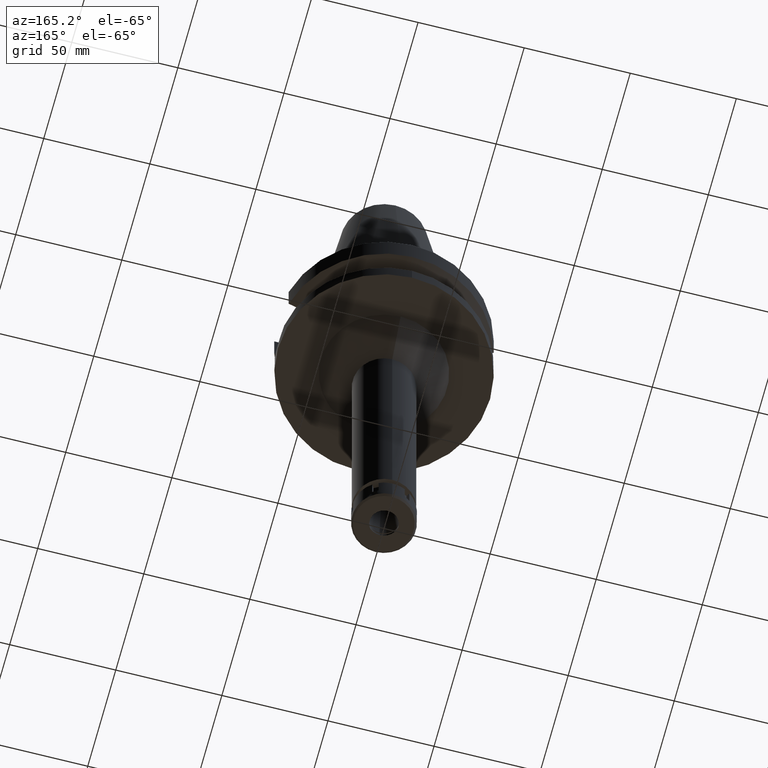
[diagram: clean part render]
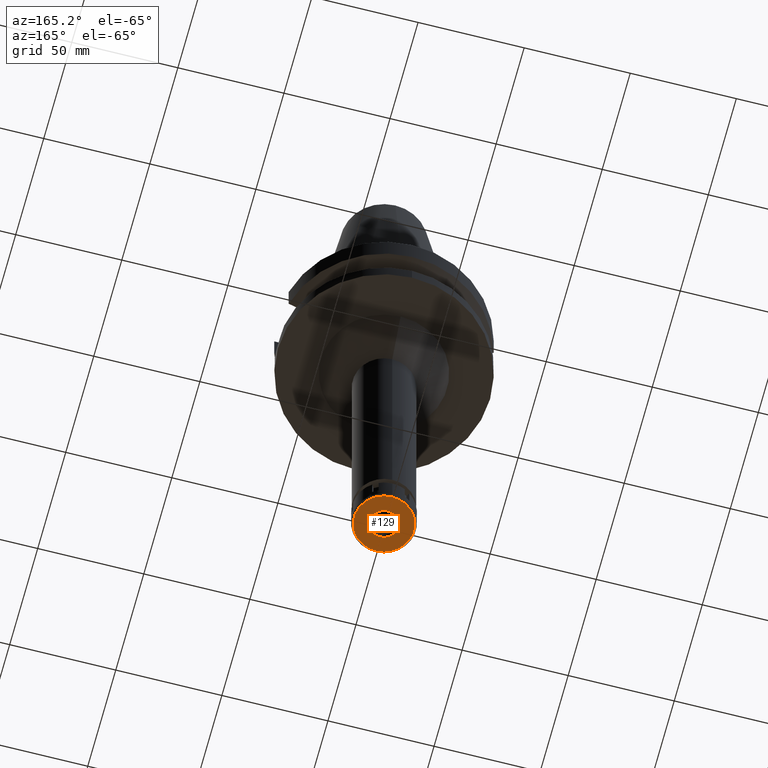
[diagram: same view with one face highlighted and labeled with its STEP entity id]
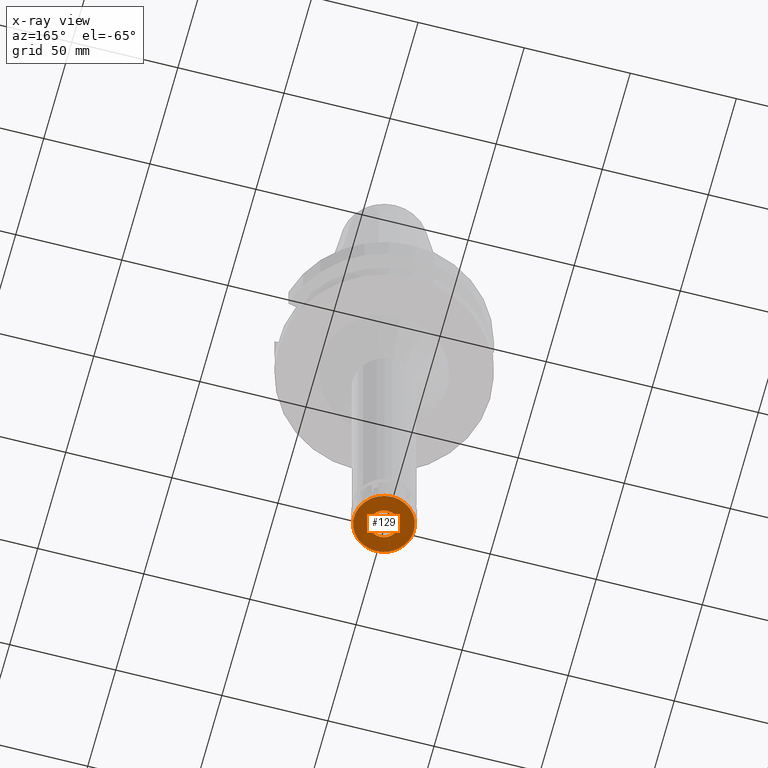
[diagram: x-ray of the same camera — body ghosted, the highlighted face saturated]
A machine part, auxiliary view. The second image highlights one B-rep face of the part: STEP entity #129.
The next image is the same camera in x-ray: the body ghosted, the highlighted face saturated — about 0% of this face is hidden behind the body in this view.
In plain terms, the highlighted planar face has unit normal (0, 0, -1).
Its self-contained STEP definition (entity closure, byte-faithful):
#15 = EDGE_LOOP ( 'NONE', ( #2894, #2939 ) ) ;
#16 = CARTESIAN_POINT ( 'NONE',  ( 0.0000000000000000000, 0.0000000000000000000, -12.50000000000000000 ) ) ;
#69 = ORIENTED_EDGE ( 'NONE', *, *, #1639, .F. ) ;
#129 = ADVANCED_FACE ( 'NONE', ( #1346, #1068 ), #1104, .T. ) ;
#133 = AXIS2_PLACEMENT_3D ( 'NONE', #1404, #1972, #3115 ) ;
#651 = AXIS2_PLACEMENT_3D ( 'NONE', #3611, #3316, #2200 ) ;
#731 = CIRCLE ( 'NONE', #133, 6.750000000000000000 ) ;
#821 = DIRECTION ( 'NONE',  ( 0.0000000000000000000, 0.0000000000000000000, -1.000000000000000000 ) ) ;
#1068 = FACE_BOUND ( 'NONE', #15, .T. ) ;
#1104 = PLANE ( 'NONE',  #3690 ) ;
#1147 = CARTESIAN_POINT ( 'NONE',  ( 0.0000000000000000000, -14.09999999999999964, -12.50000000000000000 ) ) ;
#1254 = ORIENTED_EDGE ( 'NONE', *, *, #2056, .F. ) ;
#1263 = DIRECTION ( 'NONE',  ( 0.0000000000000000000, 0.0000000000000000000, 1.000000000000000000 ) ) ;
#1346 = FACE_OUTER_BOUND ( 'NONE', #2120, .T. ) ;
#1368 = CIRCLE ( 'NONE', #1427, 14.09999999999999964 ) ;
#1404 = CARTESIAN_POINT ( 'NONE',  ( 0.0000000000000000000, 0.0000000000000000000, -12.50000000000000000 ) ) ;
#1427 = AXIS2_PLACEMENT_3D ( 'NONE', #1501, #1263, #1832 ) ;
#1501 = CARTESIAN_POINT ( 'NONE',  ( 0.0000000000000000000, 0.0000000000000000000, -12.50000000000000000 ) ) ;
#1639 = EDGE_CURVE ( 'NONE', #2154, #2845, #1368, .T. ) ;
#1799 = EDGE_CURVE ( 'NONE', #3672, #1813, #3216, .T. ) ;
#1813 = VERTEX_POINT ( 'NONE', #3275 ) ;
#1832 = DIRECTION ( 'NONE',  ( 0.0000000000000000000, -1.000000000000000000, 0.0000000000000000000 ) ) ;
#1881 = CARTESIAN_POINT ( 'NONE',  ( 0.0000000000000000000, 6.750000000000000000, -12.50000000000000000 ) ) ;
#1972 = DIRECTION ( 'NONE',  ( 0.0000000000000000000, 0.0000000000000000000, -1.000000000000000000 ) ) ;
#2056 = EDGE_CURVE ( 'NONE', #2845, #2154, #2252, .T. ) ;
#2120 = EDGE_LOOP ( 'NONE', ( #1254, #69 ) ) ;
#2154 = VERTEX_POINT ( 'NONE', #1147 ) ;
#2193 = CARTESIAN_POINT ( 'NONE',  ( 0.0000000000000000000, 0.0000000000000000000, -12.50000000000000000 ) ) ;
#2200 = DIRECTION ( 'NONE',  ( 0.0000000000000000000, 1.000000000000000000, 0.0000000000000000000 ) ) ;
#2252 = CIRCLE ( 'NONE', #3098, 14.09999999999999964 ) ;
#2291 = CARTESIAN_POINT ( 'NONE',  ( 0.0000000000000000000, 14.09999999999999964, -12.50000000000000000 ) ) ;
#2845 = VERTEX_POINT ( 'NONE', #2291 ) ;
#2894 = ORIENTED_EDGE ( 'NONE', *, *, #1799, .F. ) ;
#2939 = ORIENTED_EDGE ( 'NONE', *, *, #3420, .F. ) ;
#3098 = AXIS2_PLACEMENT_3D ( 'NONE', #16, #3403, #3664 ) ;
#3115 = DIRECTION ( 'NONE',  ( 0.0000000000000000000, -1.000000000000000000, 0.0000000000000000000 ) ) ;
#3216 = CIRCLE ( 'NONE', #651, 6.750000000000000000 ) ;
#3275 = CARTESIAN_POINT ( 'NONE',  ( 0.0000000000000000000, -6.750000000000000000, -12.50000000000000000 ) ) ;
#3316 = DIRECTION ( 'NONE',  ( 0.0000000000000000000, 0.0000000000000000000, -1.000000000000000000 ) ) ;
#3345 = DIRECTION ( 'NONE',  ( 0.0000000000000000000, -1.000000000000000000, 0.0000000000000000000 ) ) ;
#3403 = DIRECTION ( 'NONE',  ( 0.0000000000000000000, 0.0000000000000000000, 1.000000000000000000 ) ) ;
#3420 = EDGE_CURVE ( 'NONE', #1813, #3672, #731, .T. ) ;
#3611 = CARTESIAN_POINT ( 'NONE',  ( 0.0000000000000000000, 0.0000000000000000000, -12.50000000000000000 ) ) ;
#3664 = DIRECTION ( 'NONE',  ( 0.0000000000000000000, 1.000000000000000000, 0.0000000000000000000 ) ) ;
#3672 = VERTEX_POINT ( 'NONE', #1881 ) ;
#3690 = AXIS2_PLACEMENT_3D ( 'NONE', #2193, #821, #3345 ) ;